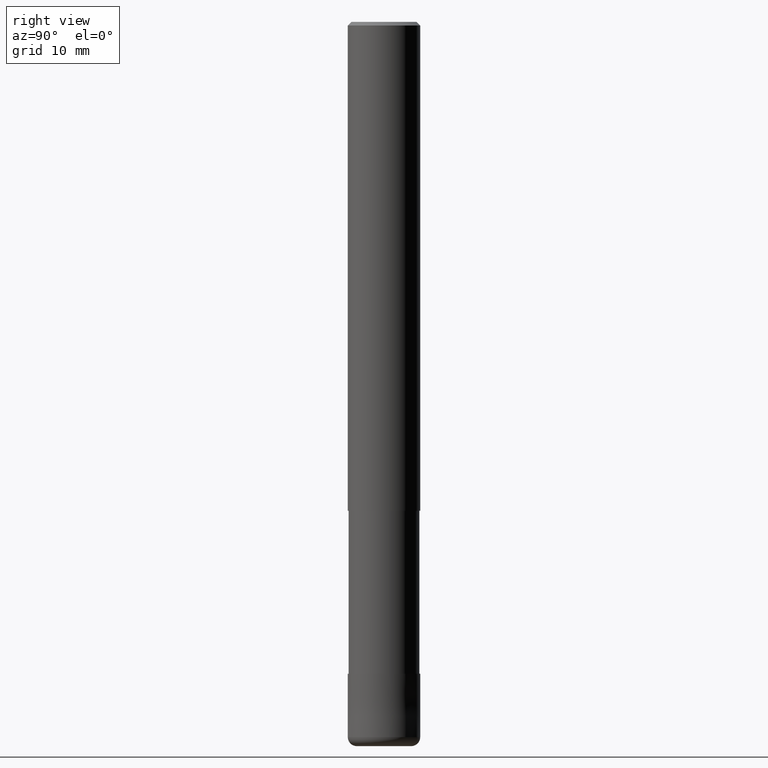
[diagram: clean part render]
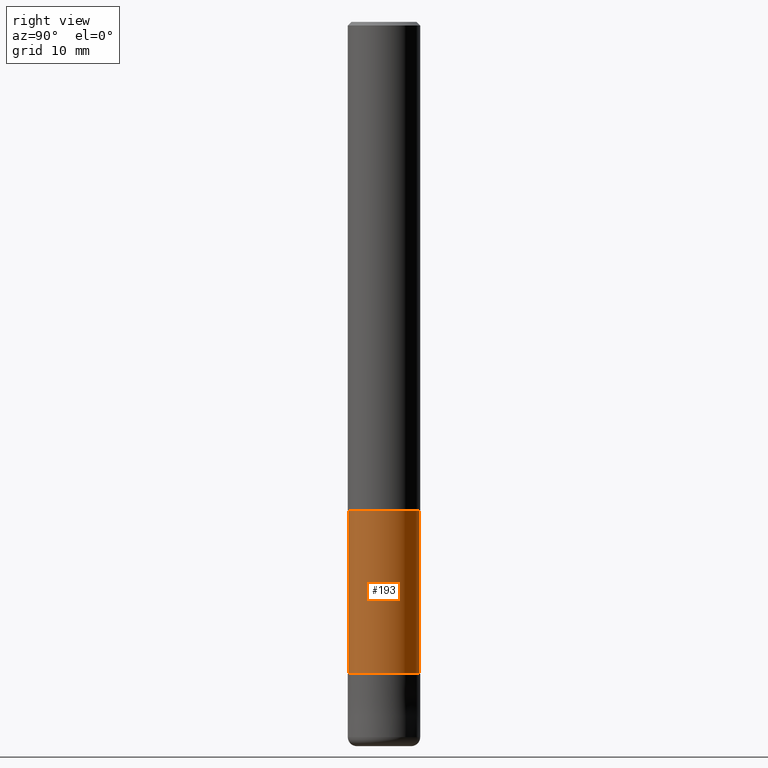
[diagram: same view with one face highlighted and labeled with its STEP entity id]
A machine part, right view. The second image highlights one B-rep face of the part: STEP entity #193.
In plain terms, the highlighted cylindrical surface (edge-blend (fillet) strip) has radius 3.9049 mm, axis along (-0, -0, 1).
Its self-contained STEP definition (entity closure, byte-faithful):
#121=VERTEX_POINT('',#308);
#137=EDGE_CURVE('',#217,#121,#326,.T.);
#153=EDGE_CURVE('',#121,#281,#346,.T.);
#193=ADVANCED_FACE('',(#390),#391,.T.);
#213=VERTEX_POINT('',#415);
#217=VERTEX_POINT('',#419);
#251=EDGE_CURVE('',#217,#213,#457,.T.);
#267=EDGE_CURVE('',#281,#213,#475,.T.);
#281=VERTEX_POINT('',#492);
#308=CARTESIAN_POINT('',(0.0,3.90495,-72.0));
#326=LINE('',#538,#539);
#346=CIRCLE('',#564,3.90495);
#390=FACE_OUTER_BOUND('',#622,.T.);
#391=CYLINDRICAL_SURFACE('',#623,3.90495);
#415=CARTESIAN_POINT('',(4.78202658135869E-016,-3.90495,-54.0));
#419=CARTESIAN_POINT('',(0.0,3.90495,-54.0));
#457=CIRCLE('',#702,3.90495);
#475=LINE('',#723,#724);
#492=CARTESIAN_POINT('',(4.78202658135869E-016,-3.90495,-72.0));
#538=CARTESIAN_POINT('',(-4.78202658135869E-016,3.90495,-63.0));
#539=VECTOR('',#772,1.0);
#564=AXIS2_PLACEMENT_3D('',#804,#805,#806);
#622=EDGE_LOOP('',(#859,#860,#861,#862));
#623=AXIS2_PLACEMENT_3D('',#863,#864,#865);
#702=AXIS2_PLACEMENT_3D('',#943,#944,#945);
#723=CARTESIAN_POINT('',(4.78202658135869E-016,-3.90495,-63.0));
#724=VECTOR('',#964,1.0);
#772=DIRECTION('',(0.0,0.0,-1.0));
#804=CARTESIAN_POINT('',(0.0,0.0,-72.0));
#805=DIRECTION('',(0.0,0.0,-1.0));
#806=DIRECTION('',(0.0,1.0,0.0));
#859=ORIENTED_EDGE('',*,*,#137,.F.);
#860=ORIENTED_EDGE('',*,*,#251,.T.);
#861=ORIENTED_EDGE('',*,*,#267,.F.);
#862=ORIENTED_EDGE('',*,*,#153,.F.);
#863=CARTESIAN_POINT('',(0.0,0.0,-63.0));
#864=DIRECTION('',(-0.0,-0.0,1.0));
#865=DIRECTION('',(0.0,1.0,0.0));
#943=CARTESIAN_POINT('',(0.0,0.0,-54.0));
#944=DIRECTION('',(0.0,0.0,-1.0));
#945=DIRECTION('',(0.0,1.0,0.0));
#964=DIRECTION('',(-0.0,-0.0,1.0));